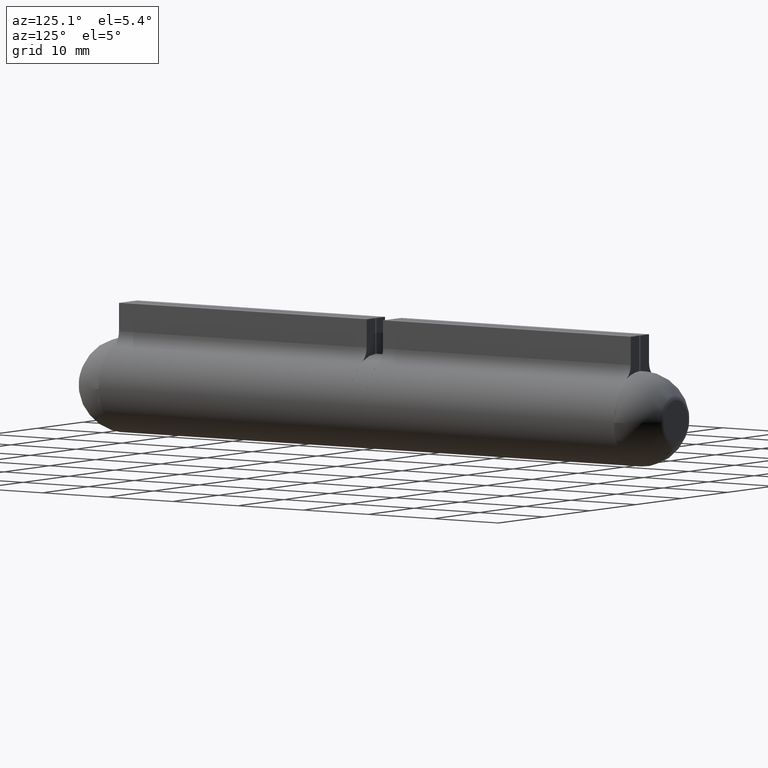
[diagram: clean part render]
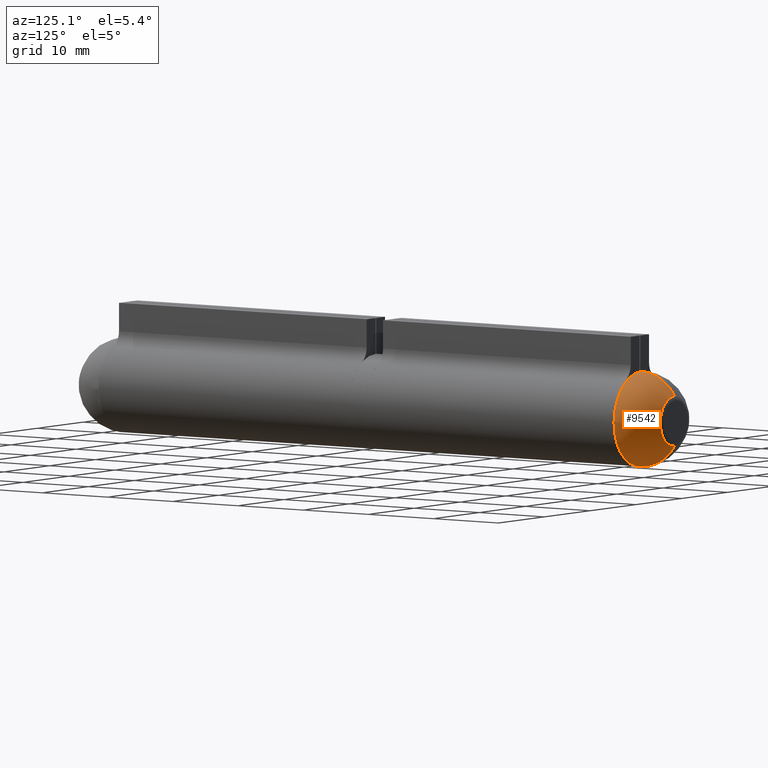
[diagram: same view with one face highlighted and labeled with its STEP entity id]
A machine part, auxiliary view. The second image highlights one B-rep face of the part: STEP entity #9542.
In plain terms, the highlighted spherical surface has radius 6 mm.
Its self-contained STEP definition (entity closure, byte-faithful):
#494 = VERTEX_POINT ( 'NONE', #10183 ) ;
#930 = ORIENTED_EDGE ( 'NONE', *, *, #11245, .T. ) ;
#1010 = CIRCLE ( 'NONE', #13886, 6.000000000000000888 ) ;
#1351 = CARTESIAN_POINT ( 'NONE',  ( 0.000000000000000000, 24.35000000000000142, 6.245698675651508728E-16 ) ) ;
#2220 = CARTESIAN_POINT ( 'NONE',  ( 0.000000000000000000, 19.25000000000000000, 0.000000000000000000 ) ) ;
#2455 = ORIENTED_EDGE ( 'NONE', *, *, #13899, .F. ) ;
#3601 = CIRCLE ( 'NONE', #12953, 6.000000000000000888 ) ;
#3678 = DIRECTION ( 'NONE',  ( -0.000000000000000000, 1.000000000000000000, 1.224646799147354440E-16 ) ) ;
#3806 = DIRECTION ( 'NONE',  ( 0.000000000000000000, 0.000000000000000000, -1.000000000000000000 ) ) ;
#3810 = AXIS2_PLACEMENT_3D ( 'NONE', #4465, #5784, #5593 ) ;
#3933 = CIRCLE ( 'NONE', #9886, 3.160696125855823713 ) ;
#4205 = ORIENTED_EDGE ( 'NONE', *, *, #14454, .T. ) ;
#4465 = CARTESIAN_POINT ( 'NONE',  ( 0.000000000000000000, 19.25000000000000000, 0.000000000000000000 ) ) ;
#4749 = CARTESIAN_POINT ( 'NONE',  ( 0.000000000000000000, 19.25000000000000000, 4.286263797015742142E-17 ) ) ;
#4859 = DIRECTION ( 'NONE',  ( -1.000000000000000000, 1.499759782661859250E-32, -1.224646799147353207E-16 ) ) ;
#5591 = SPHERICAL_SURFACE ( 'NONE', #3810, 6.000000000000000888 ) ;
#5593 = DIRECTION ( 'NONE',  ( 0.000000000000000000, 0.000000000000000000, -1.000000000000000000 ) ) ;
#5622 = VERTEX_POINT ( 'NONE', #9300 ) ;
#5784 = DIRECTION ( 'NONE',  ( -1.000000000000000000, 0.000000000000000000, 0.000000000000000000 ) ) ;
#5974 = CARTESIAN_POINT ( 'NONE',  ( 0.000000000000000000, 19.25000000000000000, 0.000000000000000000 ) ) ;
#6026 = DIRECTION ( 'NONE',  ( -1.224646799147353207E-16, 0.000000000000000000, 1.000000000000000000 ) ) ;
#7508 = CIRCLE ( 'NONE', #8799, 6.000000000000000888 ) ;
#8278 = ORIENTED_EDGE ( 'NONE', *, *, #9472, .T. ) ;
#8581 = FACE_OUTER_BOUND ( 'NONE', #11547, .T. ) ;
#8799 = AXIS2_PLACEMENT_3D ( 'NONE', #4749, #3678, #10360 ) ;
#9149 = DIRECTION ( 'NONE',  ( 0.000000000000000000, 0.000000000000000000, -1.000000000000000000 ) ) ;
#9300 = CARTESIAN_POINT ( 'NONE',  ( -5.609308594245446740E-16, 24.35000000000000142, 3.160696125855824157 ) ) ;
#9472 = EDGE_CURVE ( 'NONE', #494, #10101, #1010, .T. ) ;
#9542 = ADVANCED_FACE ( 'NONE', ( #8581 ), #5591, .T. ) ;
#9886 = AXIS2_PLACEMENT_3D ( 'NONE', #1351, #13917, #3806 ) ;
#10101 = VERTEX_POINT ( 'NONE', #11855 ) ;
#10183 = CARTESIAN_POINT ( 'NONE',  ( 0.000000000000000000, 19.25000000000000000, -6.000000000000000888 ) ) ;
#10360 = DIRECTION ( 'NONE',  ( 0.000000000000000000, 0.000000000000000000, 1.000000000000000000 ) ) ;
#10799 = CARTESIAN_POINT ( 'NONE',  ( 7.347880794884120722E-16, 19.25000000000000000, 6.000000000000000888 ) ) ;
#11245 = EDGE_CURVE ( 'NONE', #13488, #494, #7508, .T. ) ;
#11547 = EDGE_LOOP ( 'NONE', ( #2455, #930, #8278, #4205 ) ) ;
#11855 = CARTESIAN_POINT ( 'NONE',  ( 0.000000000000000000, 24.35000000000000142, -3.160696125855823269 ) ) ;
#12510 = DIRECTION ( 'NONE',  ( 1.000000000000000000, 0.000000000000000000, 0.000000000000000000 ) ) ;
#12953 = AXIS2_PLACEMENT_3D ( 'NONE', #5974, #4859, #6026 ) ;
#13488 = VERTEX_POINT ( 'NONE', #10799 ) ;
#13886 = AXIS2_PLACEMENT_3D ( 'NONE', #2220, #12510, #9149 ) ;
#13899 = EDGE_CURVE ( 'NONE', #13488, #5622, #3601, .T. ) ;
#13917 = DIRECTION ( 'NONE',  ( 0.000000000000000000, -1.000000000000000000, -1.224646799147354440E-16 ) ) ;
#14454 = EDGE_CURVE ( 'NONE', #10101, #5622, #3933, .T. ) ;